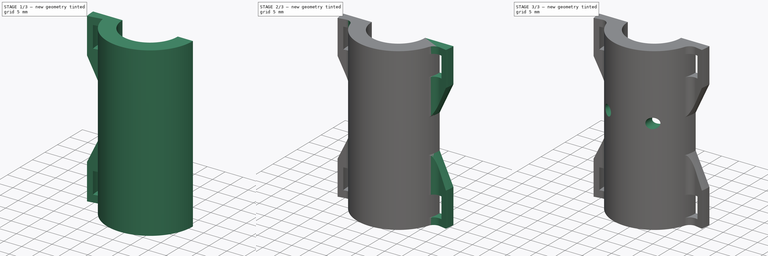
[diagram: build sequence overview — one tinted view per stage of 3, left to right]
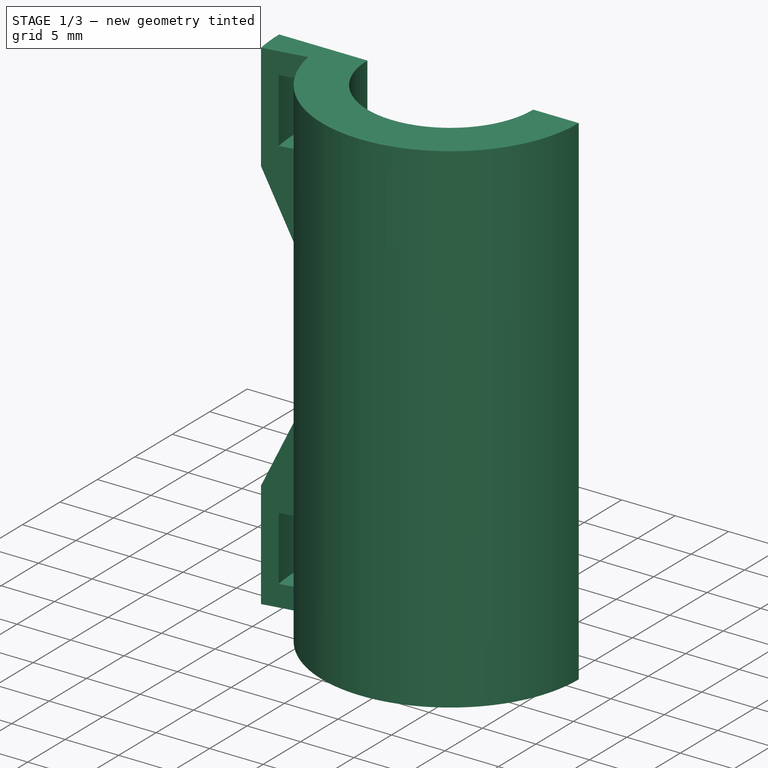
[diagram: stage 1 of 3 — iso view after this stage's code; geometry added in this stage tinted green]
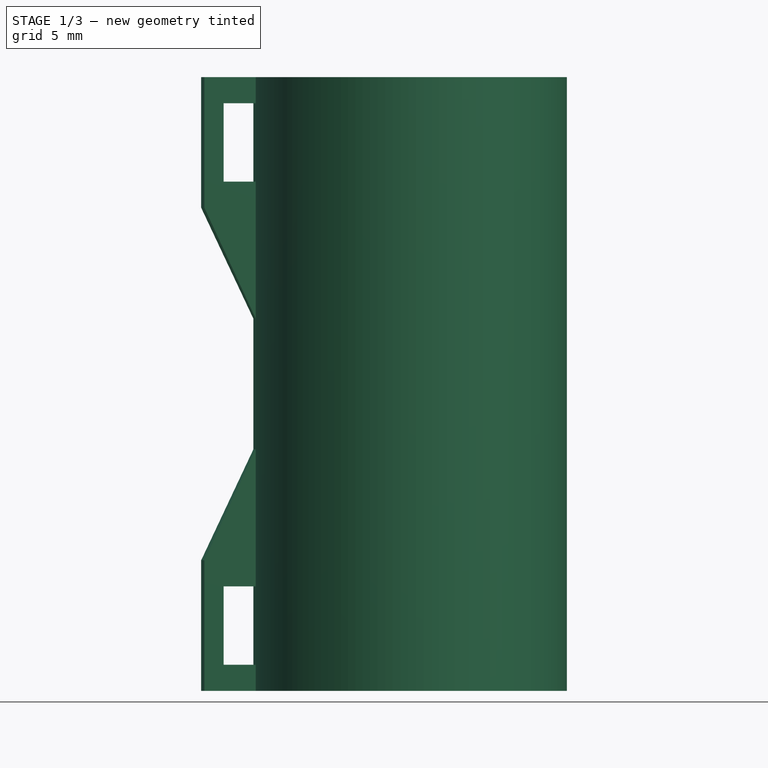
[diagram: stage 1 of 3 — front view after this stage's code; geometry added in this stage tinted green]
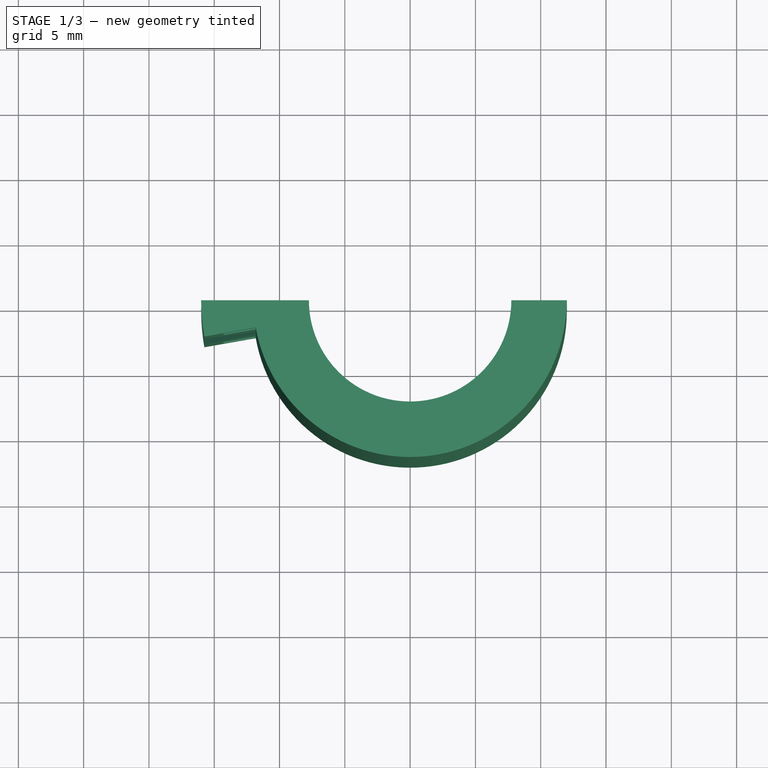
[diagram: stage 1 of 3 — top view after this stage's code; geometry added in this stage tinted green]
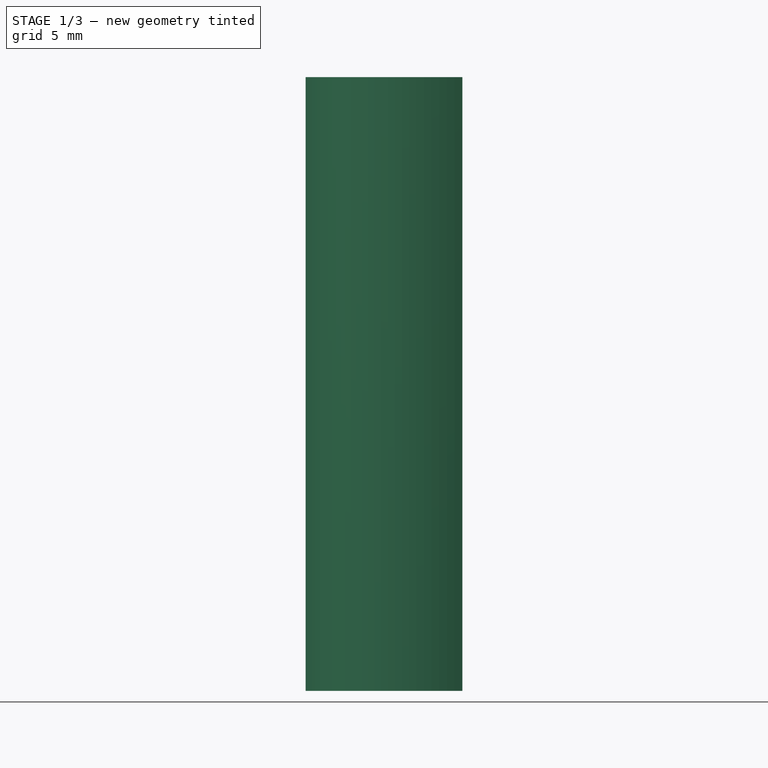
[diagram: stage 1 of 3 — right view after this stage's code; geometry added in this stage tinted green]
FCSTD DOCUMENT  (FreeCAD 0.19R23141 (Git))
Label: Spindle_connector
License: All rights reserved
LicenseURL: http://en.wikipedia.org/wiki/All_rights_reserved
objects: Sketcher::SketchObject×4, PartDesign::Revolution×2, PartDesign::Mirrored×1, PartDesign::Fillet×1, PartDesign::Pocket×1, PartDesign::Groove×1, PartDesign::Body×1
note: 16 computed .brp shape members not serialized (recipe doc carries the construction recipe); baked Part::Feature solids carry a one-line shape summary decoded from their .brp

FEATURE [Sketcher::SketchObject] Sketch
  MapMode = 5
  Placement = pos=(0,0,0) rot=(1,0,0;1.5708rad)
  Support = -> [XZ_Plane]
  sketch-geometry (8):
    g0: LineSegment StartX=-8 StartY=0 StartZ=0 EndX=-8 EndY=10 EndZ=0
    g1: LineSegment StartX=-8 StartY=10 StartZ=0 EndX=-8.5 EndY=10 EndZ=0
    g2: LineSegment StartX=-8.5 StartY=10 StartZ=0 EndX=-8.5 EndY=22 EndZ=0
    g3: LineSegment StartX=-8.5 StartY=22 StartZ=0 EndX=-7.75 EndY=22 EndZ=0
    g4: LineSegment StartX=-7.75 StartY=22 StartZ=0 EndX=-7.75 EndY=47 EndZ=0
    g5: LineSegment StartX=-7.75 StartY=47 StartZ=0 EndX=-12 EndY=47 EndZ=0
    g6: LineSegment StartX=-12 StartY=47 StartZ=0 EndX=-12 EndY=0 EndZ=0
    g7: LineSegment StartX=-8 StartY=0 StartZ=0 EndX=-12 EndY=0 EndZ=0
  constraints (24):
    c: PointOnObject(g0,g-1)
    c: Vertical(g0)
    c: Coincident(g0,g1)
    c: Horizontal(g1)
    c: Coincident(g1,g2)
    c: Vertical(g2)
    c: Coincident(g2,g3)
    c: Horizontal(g3)
    c: Coincident(g3,g4)
    c: Vertical(g4)
    c: DistanceX(g0,g-1) = 8
    c: DistanceX(g1,g-1) = 8.5
    c: DistanceX(g3,g-1) = 7.75
    c: Coincident(g5,g4)
    c: Horizontal(g5)
    c: Coincident(g6,g5)
    c: Vertical(g6)
    c: Coincident(g7,g0)
    c: Coincident(g7,g6)
    c: PointOnObject(g6,g-1)
    c: DistanceX(g6,g-1) = 12
    c: DistanceY(g0,g0) = 10
    c: DistanceY(g2,g2) = 12
    c: DistanceY(g4,g4) = 25
FEATURE [PartDesign::Revolution] Revolution
  Angle = 180
  Axis = (0,-2e-16,1)
  Base = (0,0,0)
  Placement = pos=(0,0,0) rot=(1,0,0;1.5708rad)
  Profile = -> Sketch
  ReferenceAxis = -> Sketch [V_Axis]
FEATURE [Sketcher::SketchObject] Sketch001
  ExternalGeometry = -> [Revolution]
  MapMode = 5
  Placement = pos=(0,0,0) rot=(0,0.707107,0.707107;3.14159rad)
  Support = -> [XZ_Plane]
  sketch-geometry (16):
    g0: LineSegment StartX=12 StartY=45 StartZ=0 EndX=14.5 EndY=45 EndZ=0
    g1: LineSegment StartX=14.5 StartY=45 StartZ=0 EndX=14.5 EndY=39 EndZ=0
    g2: LineSegment StartX=14.5 StartY=39 StartZ=0 EndX=12 EndY=39 EndZ=0
    g3: LineSegment StartX=12 StartY=39 StartZ=0 EndX=12 EndY=45 EndZ=0
    g4: LineSegment StartX=12 StartY=8 StartZ=0 EndX=14.5 EndY=8 EndZ=0
    g5: LineSegment StartX=14.5 StartY=8 StartZ=0 EndX=14.5 EndY=2 EndZ=0
    g6: LineSegment StartX=14.5 StartY=2 StartZ=0 EndX=12 EndY=2 EndZ=0
    g7: LineSegment StartX=12 StartY=2 StartZ=0 EndX=12 EndY=8 EndZ=0
    g8: LineSegment StartX=11 StartY=47 StartZ=0 EndX=16 EndY=47 EndZ=0
    g9: LineSegment StartX=16 StartY=47 StartZ=0 EndX=16 EndY=37 EndZ=0
    g10: LineSegment StartX=16 StartY=37 StartZ=0 EndX=12 EndY=28.5 EndZ=0
    g11: LineSegment StartX=12 StartY=28.5 StartZ=0 EndX=12 EndY=18.5 EndZ=0
    g12: LineSegment StartX=12 StartY=18.5 StartZ=0 EndX=16 EndY=10 EndZ=0
    g13: LineSegment StartX=16 StartY=10 StartZ=0 EndX=16 EndY=0 EndZ=0
    g14: LineSegment StartX=16 StartY=0 StartZ=0 EndX=11 EndY=0 EndZ=0
    g15: LineSegment StartX=11 StartY=0 StartZ=0 EndX=11 EndY=47 EndZ=0
  constraints (48):
    c: Coincident(g0,g1)
    c: Coincident(g1,g2)
    c: Coincident(g2,g3)
    c: Coincident(g3,g0)
    c: Horizontal(g0)
    c: Horizontal(g2)
    c: Vertical(g1)
    c: Vertical(g3)
    c: Coincident(g4,g5)
    c: Coincident(g5,g6)
    c: Coincident(g6,g7)
    c: Coincident(g7,g4)
    c: Horizontal(g4)
    c: Horizontal(g6)
    c: Vertical(g5)
    c: Vertical(g7)
    c: Equal(g5,g1)
    c: Equal(g2,g4)
    c: DistanceX(g0,g0) = 2.5
    c: Horizontal(g8)
    c: Coincident(g8,g9)
    c: Vertical(g9)
    c: Coincident(g9,g10)
    c: Coincident(g10,g11)
    c: Vertical(g11)
    c: Coincident(g11,g12)
    c: Coincident(g12,g13)
    c: PointOnObject(g13,g-1)
    c: Vertical(g13)
    c: Coincident(g13,g14)
    c: PointOnObject(g14,g-1)
    c: Coincident(g14,g15)
    c: Vertical(g15)
    c: Coincident(g8,g15)
    c: PointOnObject(g8,g-3)
    c: DistanceX(g8,g-3) = 1
    c: DistanceX(g8,g8) = 5
    c: PointOnObject(g0,g-4)
    c: PointOnObject(g4,g-4)
    c: Equal(g12,g10)
    c: Equal(g14,g8)
    c: Equal(g9,g13)
    c: PointOnObject(g11,g-4)
    c: DistanceY(g9,g9) = 10
    c: DistanceY(g0,g-4) = 2
    c: DistanceY(g-4,g6) = 2
    c: DistanceY(g11,g11) = 10
    c: DistanceY(g5,g5) = 6
FEATURE [PartDesign::Revolution] Revolution001
  Angle = 10
  Axis = (0,-2e-16,1)
  Base = (0,0,0)
  BaseFeature = -> Revolution
  Placement = pos=(0,0,0) rot=(1,0,0;1.5708rad)
  Profile = -> Sketch001
  ReferenceAxis = -> Sketch001 [V_Axis]
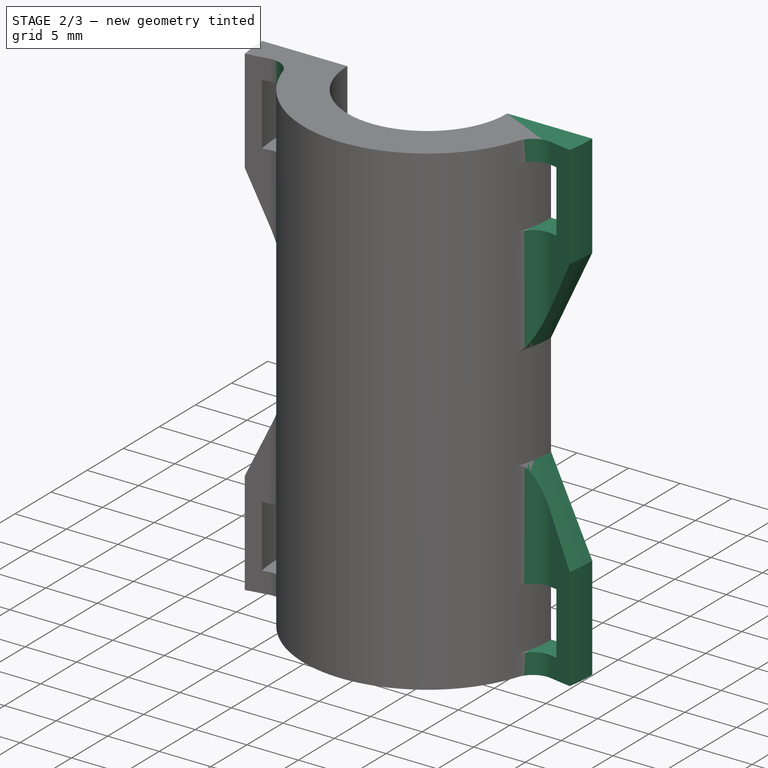
[diagram: stage 2 of 3 — iso view after this stage's code; geometry added in this stage tinted green]
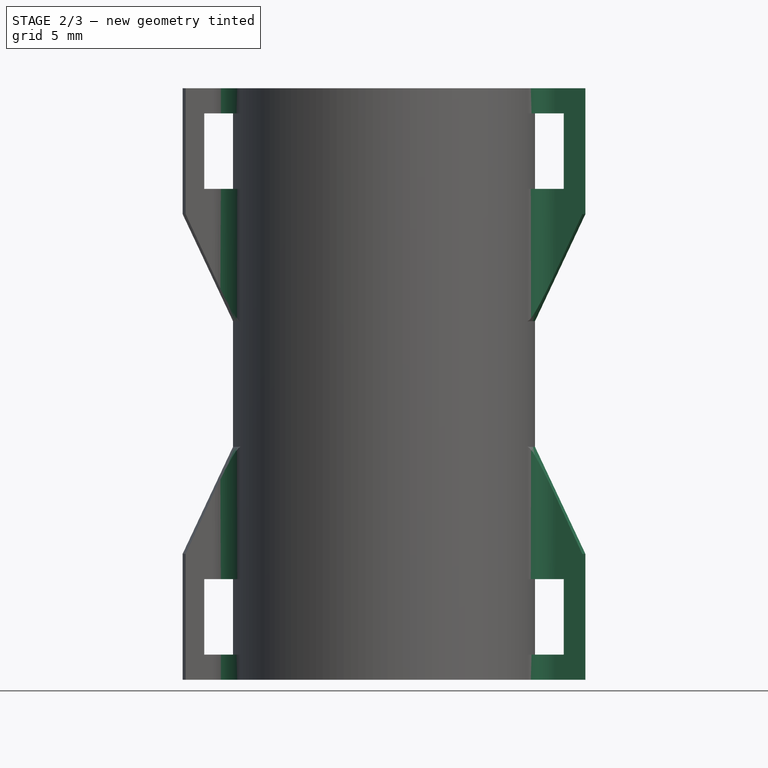
[diagram: stage 2 of 3 — front view after this stage's code; geometry added in this stage tinted green]
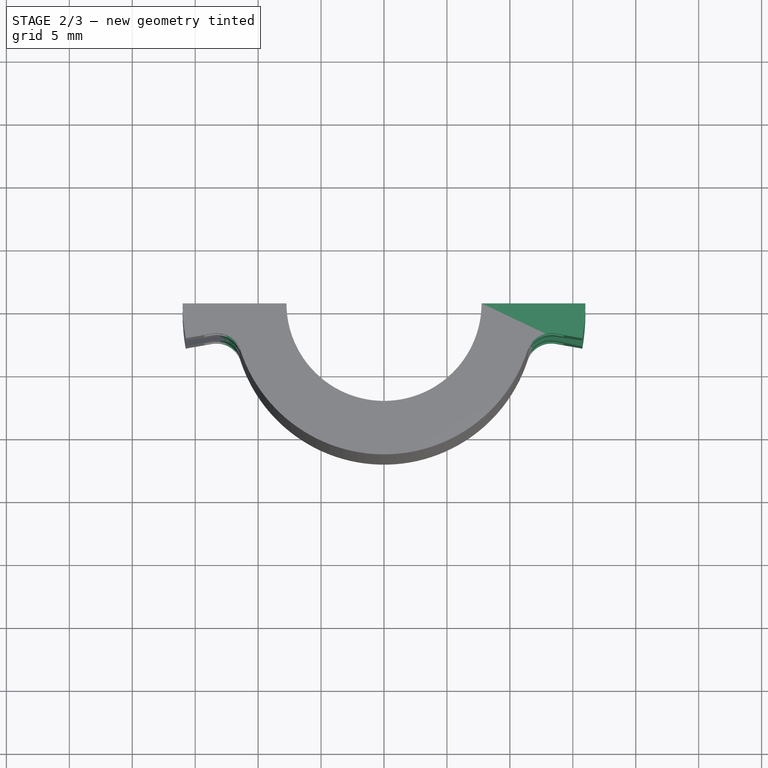
[diagram: stage 2 of 3 — top view after this stage's code; geometry added in this stage tinted green]
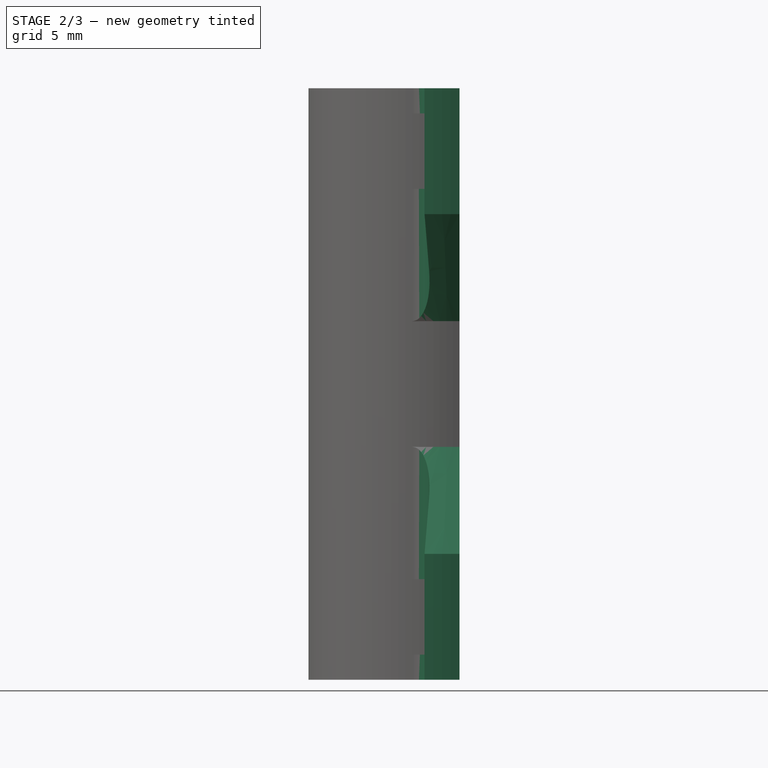
[diagram: stage 2 of 3 — right view after this stage's code; geometry added in this stage tinted green]
FEATURE [PartDesign::Mirrored] Mirrored
  BaseFeature = -> Revolution001
  MirrorPlane = -> Sketch001 [V_Axis]
  Originals = -> [Revolution001]
  Placement = pos=(0,0,0) rot=(1,0,0;1.5708rad)
  Refine = true
FEATURE [PartDesign::Fillet] Fillet
  Base = -> Mirrored [Edge97,Edge26,Edge30,Edge93,Edge69,Edge73,Edge44,Edge48]
  BaseFeature = -> Mirrored
  Placement = pos=(0,0,0) rot=(1,0,0;1.5708rad)
  Radius = 2
  SupportTransform = false
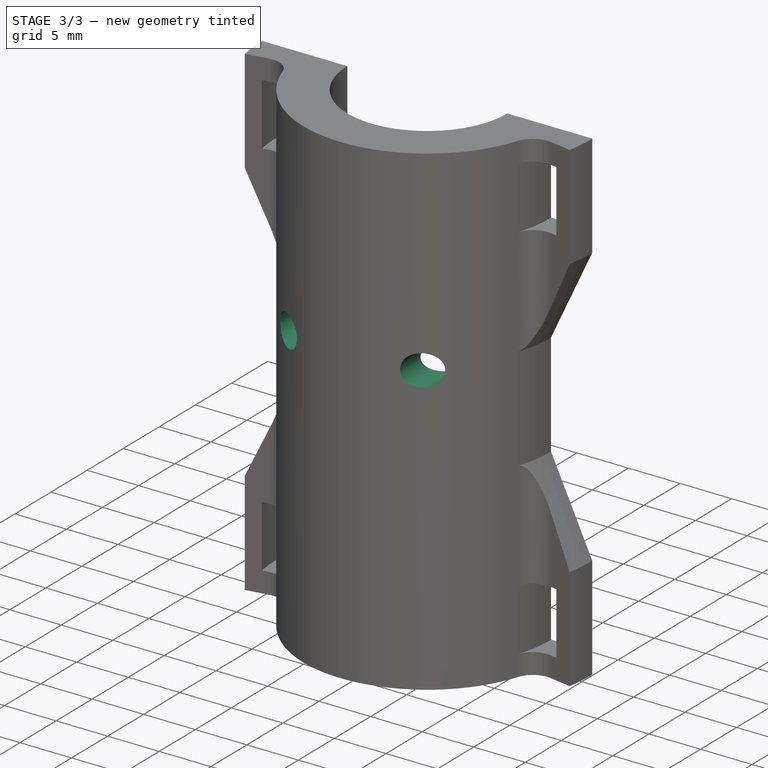
[diagram: stage 3 of 3 — iso view after this stage's code; geometry added in this stage tinted green]
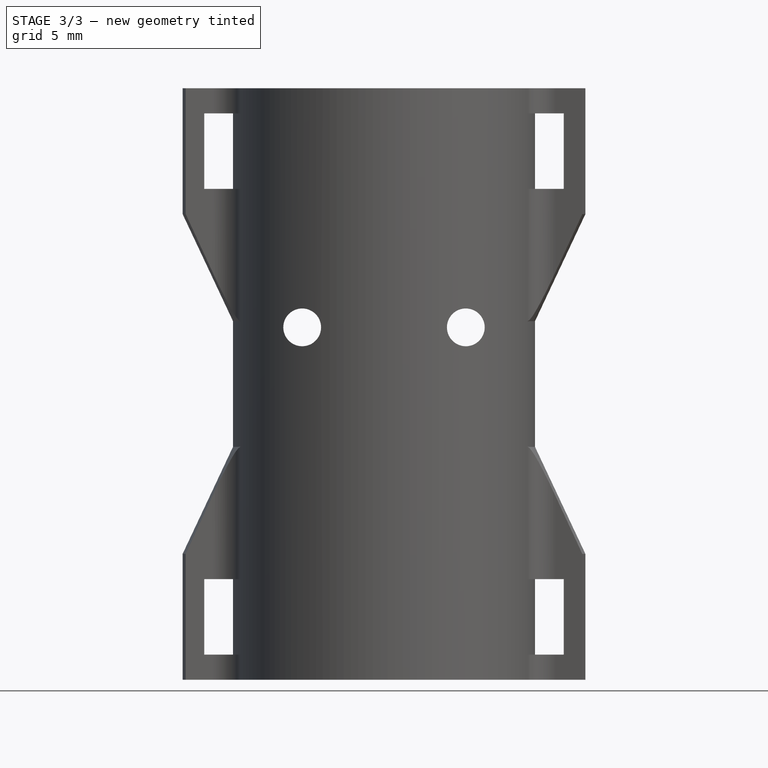
[diagram: stage 3 of 3 — front view after this stage's code; geometry added in this stage tinted green]
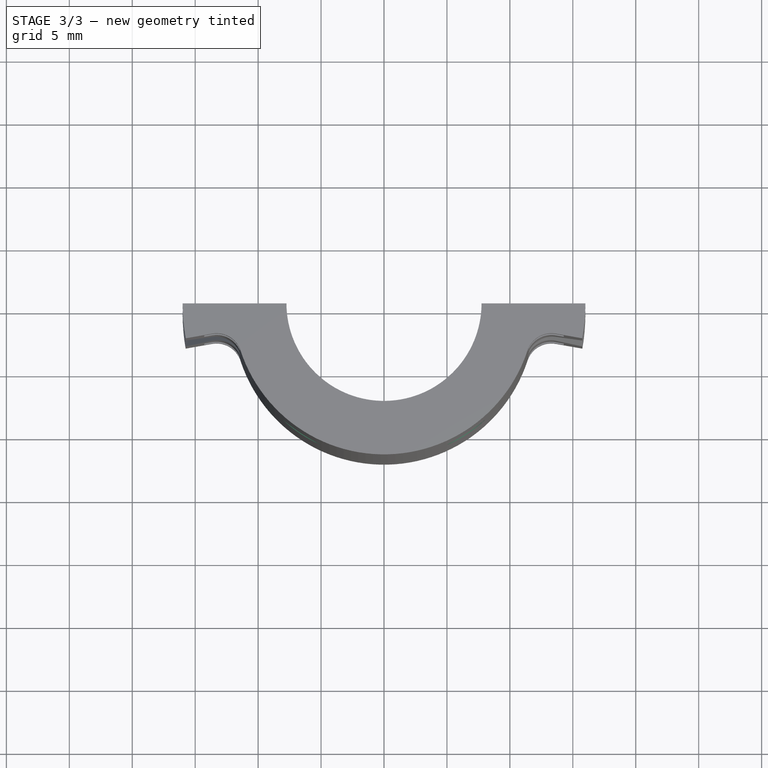
[diagram: stage 3 of 3 — top view after this stage's code; geometry added in this stage tinted green]
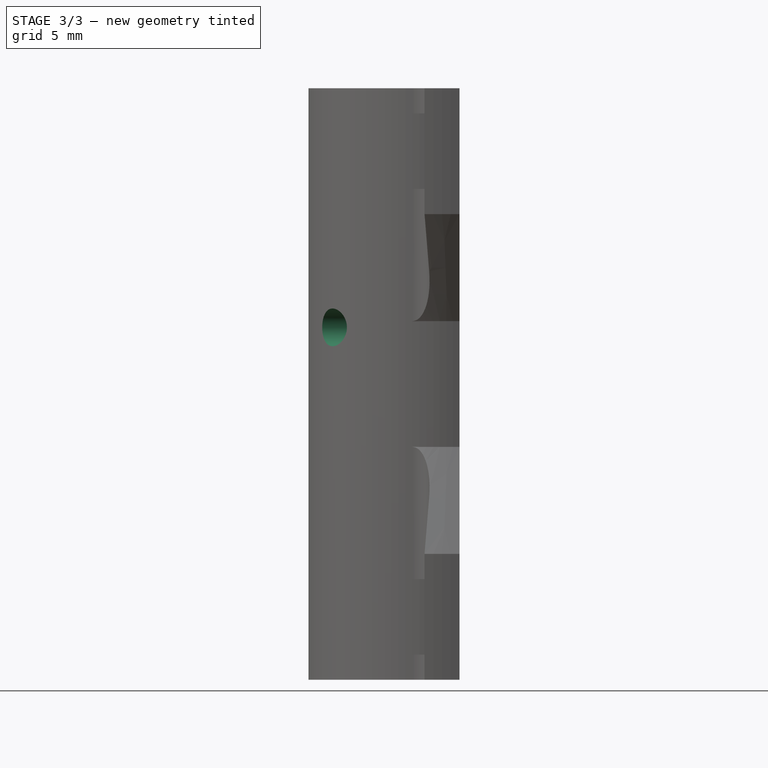
[diagram: stage 3 of 3 — right view after this stage's code; geometry added in this stage tinted green]
FEATURE [Sketcher::SketchObject] Sketch002
  MapMode = 5
  Placement = pos=(0,0,0) rot=(-1,0,0;1.5708rad)
  Support = -> [Fillet]
  sketch-geometry (4):
    g0: Circle CenterX=-6.5 CenterY=-28 CenterZ=0 NormalX=0 NormalY=0 NormalZ=1 AngleXU=0 Radius=1.5
    g1: Circle CenterX=6.5 CenterY=-28 CenterZ=0 NormalX=0 NormalY=0 NormalZ=1 AngleXU=0 Radius=1.5
    g2: LineSegment [constr] StartX=-6.5 StartY=-28 StartZ=0 EndX=0 EndY=-28 EndZ=0
    g3: LineSegment [constr] StartX=0 StartY=-28 StartZ=0 EndX=6.5 EndY=-28 EndZ=0
  constraints (11):
    c: Coincident(g2,g0)
    c: Horizontal(g2)
    c: Coincident(g2,g3)
    c: Coincident(g3,g1)
    c: Horizontal(g3)
    c: Equal(g3,g2)
    c: PointOnObject(g2,g-2)
    c: DistanceY(g2,g-1) = 28
    c: Diameter(g0) = 3
    c: Equal(g0,g1)
    c: DistanceX(g0,g1) = 13
FEATURE [PartDesign::Pocket] Pocket
  BaseFeature = -> Fillet
  Length = 5
  Length2 = 100
  Placement = pos=(0,0,0) rot=(1,0,0;1.5708rad)
  Profile = -> Sketch002
  Type = 1
FEATURE [Sketcher::SketchObject] Sketch003
  MapMode = 5
  Placement = pos=(0,0,0) rot=(0,0.707107,0.707107;3.14159rad)
  Support = -> [XZ_Plane]
  sketch-geometry (1):
    g0: Circle CenterX=-6.5 CenterY=28 CenterZ=0 NormalX=0 NormalY=0 NormalZ=1 AngleXU=0 Radius=3
  constraints (3):
    c: DistanceY(g-1,g0) = 28
    c: Diameter(g0) = 6
    c: DistanceX(g0,g-1) = 6.5
FEATURE [PartDesign::Groove] Groove
  Angle = 360
  Axis = (0,-2e-16,1)
  Base = (0,0,0)
  BaseFeature = -> Pocket
  Placement = pos=(0,0,0) rot=(1,0,0;1.5708rad)
  Profile = -> Sketch003
  ReferenceAxis = -> Sketch003 [V_Axis]
  Reversed = true
FEATURE [PartDesign::Body] Body
  Group = -> [Sketch,Revolution,Sketch001,Revolution001,Mirrored,Fillet,Sketch002,Pocket,Sketch003,Groove]
  Origin = -> Origin
  Tip = -> Groove
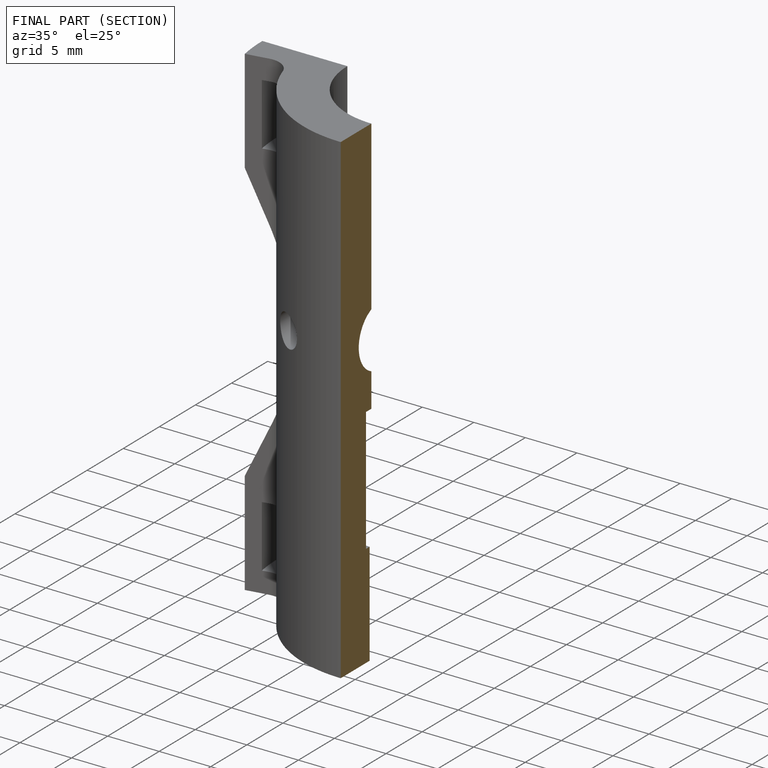
[diagram: finished part — half-section view (interior)]
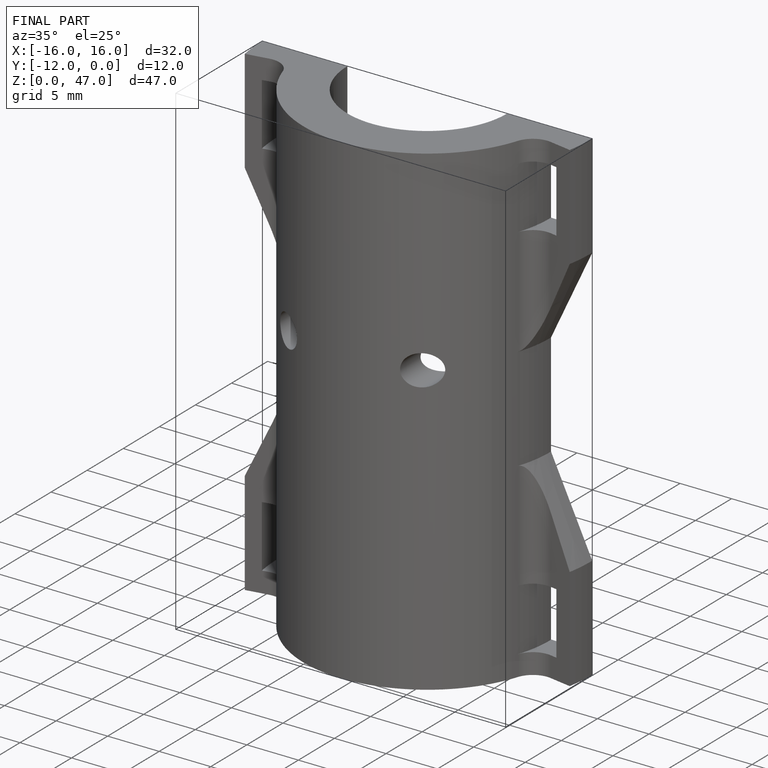
[diagram: finished part — iso view with bounding-box wireframe]
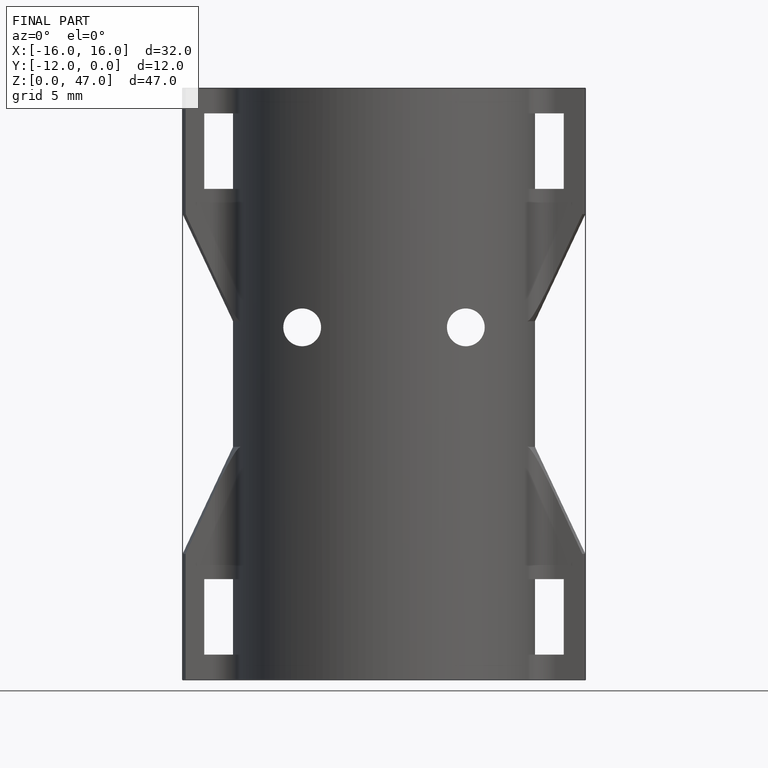
[diagram: finished part — front view with bounding-box wireframe]
